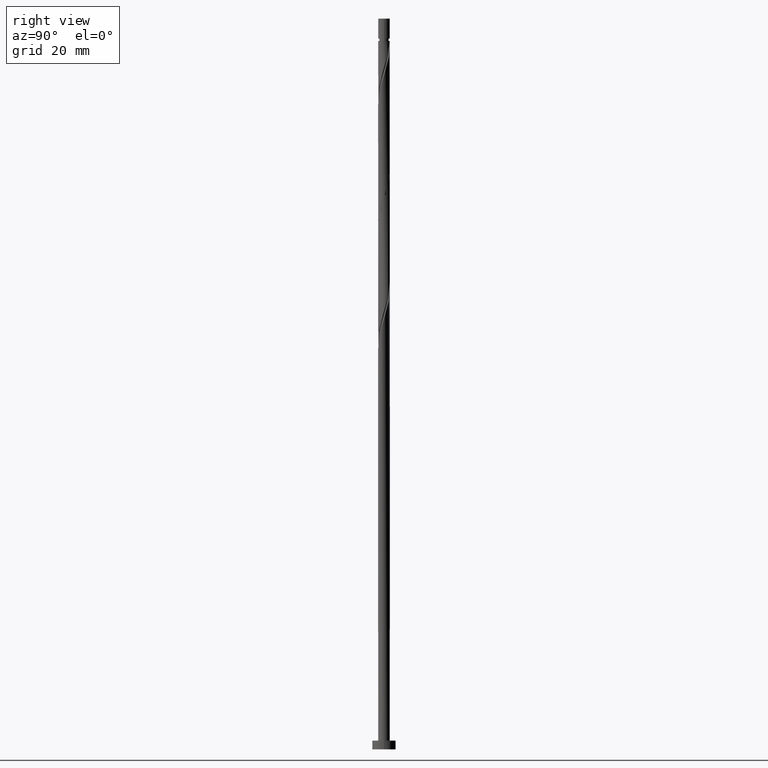
[diagram: clean part render]
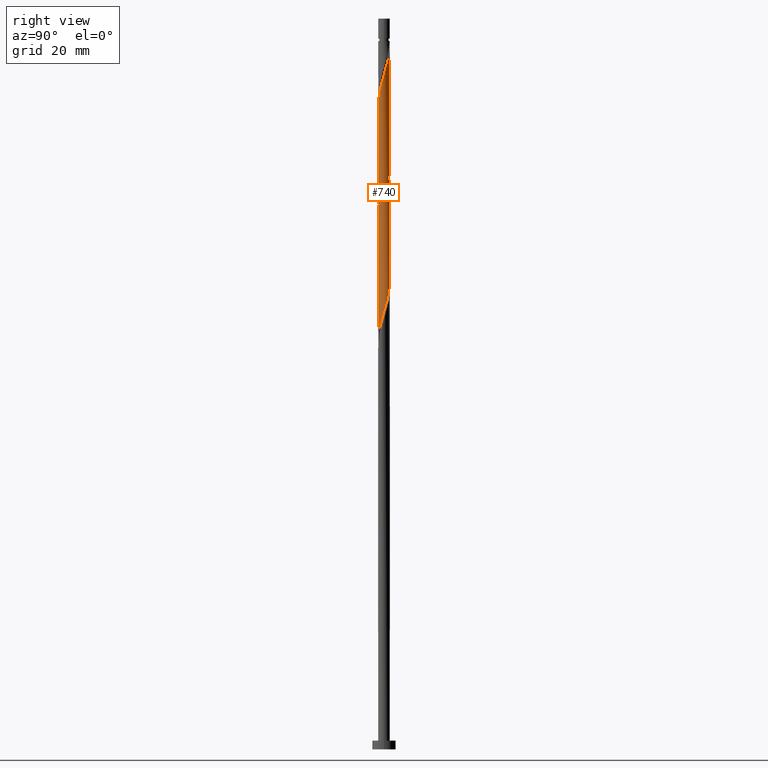
[diagram: same view with one face highlighted and labeled with its STEP entity id]
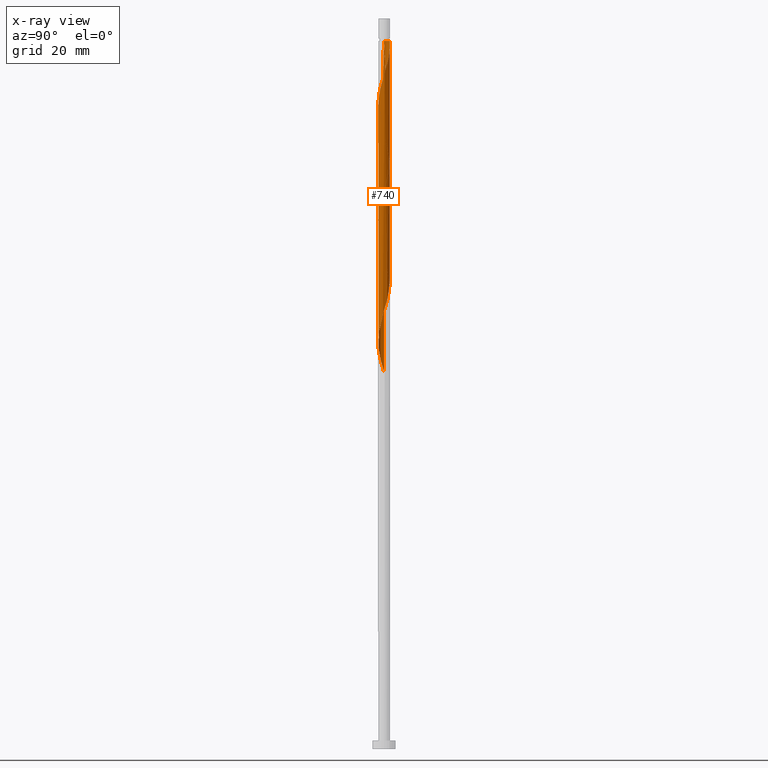
[diagram: x-ray of the same camera — body ghosted, the highlighted face saturated]
A machine part, right view. The second image highlights one B-rep face of the part: STEP entity #740.
The next image is the same camera in x-ray: the body ghosted, the highlighted face saturated — about 0% of this face is hidden behind the body in this view.
In plain terms, the highlighted cylindrical surface (bore or boss wall) has radius 2 mm, axis along (-0, -0, -1).
Its self-contained STEP definition (entity closure, byte-faithful):
#33 = AXIS2_PLACEMENT_3D ( 'NONE', #992, #1089, #1616 ) ;
#34 = CARTESIAN_POINT ( 'NONE',  ( 1.839135291735831457, -0.7858634605908146886, 227.9393398159223523 ) ) ;
#41 = CARTESIAN_POINT ( 'NONE',  ( -2.000000000000003109, -5.234578486650210785E-17, 209.7844948631074260 ) ) ;
#47 =( BOUNDED_CURVE ( )  B_SPLINE_CURVE ( 2, ( #1592, #940, #1462, #273, #1515, #444, #594, #427, #1108, #712, #1623, #1261, #316, #177, #983, #420, #435, #1606, #48, #847, #828, #1356, #837, #555, #956, #1494, #169, #972, #693 ),
 .UNSPECIFIED., .F., .F. ) 
 B_SPLINE_CURVE_WITH_KNOTS ( ( 3, 2, 2, 2, 2, 2, 2, 2, 2, 2, 2, 2, 2, 2, 3 ),
 ( 0.4295271625973833274, 0.4326923076923077094, 0.4423076923076922906, 0.4519230769230769273, 0.4615384615384615641, 0.4711538461538461453, 0.4807692307692307820, 0.4903846153846153633, 0.5000000000000000000, 0.5096153846153845812, 0.5192307692307692735, 0.5288461538461538547, 0.5384615384615384359, 0.5480769230769231282, 0.5545271625973832164 ),
 .UNSPECIFIED. ) 
 CURVE ( )  GEOMETRIC_REPRESENTATION_ITEM ( )  RATIONAL_B_SPLINE_CURVE ( ( 0.9061636035682995027, 0.9069090390690881520, 0.9090909090909448098, 0.9024626128164481287, 0.9090909090909448098, 0.9024626128164481287, 0.9090909090909448098, 0.9024626128164481287, 0.9090909090909448098, 0.9024626128164481287, 0.9090909090909448098, 0.9024626128164481287, 0.9090909090909448098, 0.9024626128164481287, 0.9090909090909448098, 0.9024626128164481287, 0.9090909090909448098, 0.9024626128164481287, 0.9090909090909448098, 0.9024626128164481287, 0.9090909090909448098, 0.9024626128164481287, 0.9090909090909448098, 0.9024626128164481287, 0.9090909090909448098, 0.9024626128164481287, 0.9090909090909448098, 0.9046444828383048975, 0.9061636035682996138 ) ) 
 REPRESENTATION_ITEM ( '' )  );
#48 = CARTESIAN_POINT ( 'NONE',  ( 0.8554886662037728406, 1.807799530367482532, 199.0931859697684843 ) ) ;
#50 = CARTESIAN_POINT ( 'NONE',  ( -2.000000000000003109, -5.234578486650210785E-17, 209.7844948631074260 ) ) ;
#57 = AXIS2_PLACEMENT_3D ( 'NONE', #1404, #361, #1694 ) ;
#61 = CARTESIAN_POINT ( 'NONE',  ( -1.974395566656741430, -0.4009181193270349164, 211.1124167389993431 ) ) ;
#63 = CARTESIAN_POINT ( 'NONE',  ( 1.897736400206351481, -0.6313450366731644392, 189.4778013543838426 ) ) ;
#79 = CARTESIAN_POINT ( 'NONE',  ( -1.691500872565838032, 1.067157344588420598, 167.0419039184864118 ) ) ;
#87 = CARTESIAN_POINT ( 'NONE',  ( -1.974395566656737877, 0.4009181193270346388, 169.4457500723326007 ) ) ;
#95 = CARTESIAN_POINT ( 'NONE',  ( -0.3252653633339290806, 1.988259448727392131, 161.4329295595120755 ) ) ;
#104 = VERTEX_POINT ( 'NONE', #1189 ) ;
#106 = CARTESIAN_POINT ( 'NONE',  ( 1.211998413758895943, -1.609357958033087455, 143.8047244313069370 ) ) ;
#161 = CARTESIAN_POINT ( 'NONE',  ( 1.451533661270556053, -1.397148246335018440, 225.5354936620762771 ) ) ;
#167 = ORIENTED_EDGE ( 'NONE', *, *, #580, .F. ) ;
#169 = CARTESIAN_POINT ( 'NONE',  ( 1.973762798760987147, 0.3228938126183191204, 192.6829295595121039 ) ) ;
#171 = DIRECTION ( 'NONE',  ( -0.000000000000000000, -0.000000000000000000, -1.000000000000000000 ) ) ;
#177 = CARTESIAN_POINT ( 'NONE',  ( -0.3252653633339290806, 1.988259448727392131, 203.0995962261787326 ) ) ;
#179 = CARTESIAN_POINT ( 'NONE',  ( -1.897736400206355256, -0.6313450366731635510, 211.9136987902813019 ) ) ;
#197 = CARTESIAN_POINT ( 'NONE',  ( 2.000000000000000444, 2.123743271726671248E-15, 191.6070052815578322 ) ) ;
#207 = CARTESIAN_POINT ( 'NONE',  ( 0.3252653633339306904, 1.988259448727395462, 239.9585705851532396 ) ) ;
#208 = CARTESIAN_POINT ( 'NONE',  ( -1.897736400206351481, 0.6313450366731636620, 168.6444680210505567 ) ) ;
#215 = CARTESIAN_POINT ( 'NONE',  ( 1.839135291735829236, 0.7858634605908124682, 152.6188269954094778 ) ) ;
#223 = CARTESIAN_POINT ( 'NONE',  ( 0.5584503685516667426, 1.920451297446649663, 239.1572885338710535 ) ) ;
#224 = CARTESIAN_POINT ( 'NONE',  ( -0.3979949748426498957, -1.959999999999999520, 138.1957500723326575 ) ) ;
#234 = CARTESIAN_POINT ( 'NONE',  ( 0.5584503685516641891, -1.920451297446647221, 141.4008782774608335 ) ) ;
#273 = CARTESIAN_POINT ( 'NONE',  ( -1.974395566656737877, 0.4009181193270346388, 211.1124167389993431 ) ) ;
#298 = CARTESIAN_POINT ( 'NONE',  ( -2.000000000000000000, 0.000000000000000000, 250.0000000000000000 ) ) ;
#300 = CARTESIAN_POINT ( 'NONE',  ( -1.451533661270553610, -1.397148246335015775, 175.8560064825890095 ) ) ;
#315 = VECTOR ( 'NONE', #821, 1000.000000000000000 ) ;
#316 = CARTESIAN_POINT ( 'NONE',  ( -0.5584503685516643001, 1.920451297446647221, 203.9008782774608051 ) ) ;
#318 = CARTESIAN_POINT ( 'NONE',  ( -2.000000000000002220, -0.07954626067354338137, 210.0486657787403715 ) ) ;
#320 = CARTESIAN_POINT ( 'NONE',  ( 1.993682386258019967, -0.1588412500722983789, 191.0803654569480159 ) ) ;
#327 = CARTESIAN_POINT ( 'NONE',  ( 1.386961462567306569, 1.440950346595318843, 235.9521603287428491 ) ) ;
#329 = CARTESIAN_POINT ( 'NONE',  ( 1.001816893764147842, -1.731000552099494438, 184.6701090466916355 ) ) ;
#343 = CARTESIAN_POINT ( 'NONE',  ( -1.211998413758896609, 1.609357958033087010, 164.6380577646403083 ) ) ;
#351 = CARTESIAN_POINT ( 'NONE',  ( 1.691500872565838032, -1.067157344588420820, 146.2085705851531259 ) ) ;
#361 = DIRECTION ( 'NONE',  ( -0.000000000000000000, -0.000000000000000000, -1.000000000000000000 ) ) ;
#362 = CARTESIAN_POINT ( 'NONE',  ( 1.386961462567303904, -1.440950346595317955, 144.6060064825890095 ) ) ;
#369 = ORIENTED_EDGE ( 'NONE', *, *, #405, .T. ) ;
#371 = CARTESIAN_POINT ( 'NONE',  ( -1.934556391662673569, -0.5625520060541976397, 130.9842116107941195 ) ) ;
#405 = EDGE_CURVE ( 'NONE', #1418, #502, #958, .T. ) ;
#413 = EDGE_CURVE ( 'NONE', #511, #104, #1377, .T. ) ;
#420 = CARTESIAN_POINT ( 'NONE',  ( 0.1600078877270190436, 2.008325339157888134, 201.4970321236147015 ) ) ;
#427 = CARTESIAN_POINT ( 'NONE',  ( -1.561924511375710978, 1.272542735157548233, 207.9072885338711103 ) ) ;
#429 = CARTESIAN_POINT ( 'NONE',  ( 0.8554886662037717304, -1.807799530367486529, 223.1316475082300599 ) ) ;
#431 = CARTESIAN_POINT ( 'NONE',  ( -1.263264465859908148, -1.550536323113935078, 176.6572885338710819 ) ) ;
#435 = CARTESIAN_POINT ( 'NONE',  ( 0.3979949748426501732, 1.959999999999999520, 200.6957500723326291 ) ) ;
#437 = CARTESIAN_POINT ( 'NONE',  ( 1.597623926539770256, -1.203161580731224145, 226.3367757133582643 ) ) ;
#444 = CARTESIAN_POINT ( 'NONE',  ( -1.821077233755965530, 0.8617719540192920746, 209.5098526364352267 ) ) ;
#448 = CARTESIAN_POINT ( 'NONE',  ( 2.000000000000000444, 2.123743271726671248E-15, 191.6070052815578322 ) ) ;
#455 = VERTEX_POINT ( 'NONE', #966 ) ;
#458 = CARTESIAN_POINT ( 'NONE',  ( 1.561924511375714308, 1.272542735157548677, 235.1508782774608335 ) ) ;
#465 = CARTESIAN_POINT ( 'NONE',  ( 0.8554886662037728406, 1.807799530367482532, 157.4265193031018271 ) ) ;
#472 = CARTESIAN_POINT ( 'NONE',  ( -2.000000000000000000, 2.669635028191625354E-15, 129.1070052815578322 ) ) ;
#480 = CARTESIAN_POINT ( 'NONE',  ( 0.1600078877270190436, 2.008325339157888134, 159.8303654569480159 ) ) ;
#485 = ORIENTED_EDGE ( 'NONE', *, *, #1308, .T. ) ;
#489 = CARTESIAN_POINT ( 'NONE',  ( 0.3979949748426501732, 1.959999999999999520, 159.0290834056659719 ) ) ;
#498 = CARTESIAN_POINT ( 'NONE',  ( -1.934556391662673569, -0.5625520060541976397, 172.6508782774607482 ) ) ;
#502 = VERTEX_POINT ( 'NONE', #197 ) ;
#511 = VERTEX_POINT ( 'NONE', #50 ) ;
#530 = CIRCLE ( 'NONE', #33, 1.999999999999982681 ) ;
#555 = CARTESIAN_POINT ( 'NONE',  ( 1.743714191808984681, 1.009174915127426297, 195.0867757133582643 ) ) ;
#556 = EDGE_CURVE ( 'NONE', #1693, #1173, #1250, .T. ) ;
#558 = CARTESIAN_POINT ( 'NONE',  ( -2.000000000000000000, 0.000000000000000000, 250.0000000000000000 ) ) ;
#560 = CARTESIAN_POINT ( 'NONE',  ( 1.691500872565838032, -1.067157344588420820, 187.8752372518197546 ) ) ;
#567 = CARTESIAN_POINT ( 'NONE',  ( -0.5584503685516657434, -1.920451297446650329, 218.3239552005377675 ) ) ;
#575 = CARTESIAN_POINT ( 'NONE',  ( 1.993682386258022632, 0.1588412500722958531, 231.1444680210505283 ) ) ;
#580 = EDGE_CURVE ( 'NONE', #511, #455, #1213, .T. ) ;
#586 = CARTESIAN_POINT ( 'NONE',  ( -1.211998413758899718, -1.609357958033089009, 215.9201090466916071 ) ) ;
#588 = CARTESIAN_POINT ( 'NONE',  ( 1.821077233755965530, -0.8617719540192920746, 188.6765193031018271 ) ) ;
#594 = CARTESIAN_POINT ( 'NONE',  ( -1.691500872565838032, 1.067157344588420598, 208.7085705851530690 ) ) ;
#596 = CARTESIAN_POINT ( 'NONE',  ( 1.597623926539769146, 1.203161580731220814, 154.2213910979736511 ) ) ;
#602 = CARTESIAN_POINT ( 'NONE',  ( 0.7916353737694016290, 1.852643146165904975, 238.3560064825890947 ) ) ;
#603 = CARTESIAN_POINT ( 'NONE',  ( 0.3252653633339281924, -1.988259448727392131, 140.5995962261787326 ) ) ;
#612 = CARTESIAN_POINT ( 'NONE',  ( 1.074995270449263129, 1.703924399892854602, 156.6252372518197546 ) ) ;
#621 = CARTESIAN_POINT ( 'NONE',  ( -1.001816893764148064, 1.731000552099494438, 163.8367757133582359 ) ) ;
#628 = ORIENTED_EDGE ( 'NONE', *, *, #413, .T. ) ;
#630 = CARTESIAN_POINT ( 'NONE',  ( 0.6359820619582814416, 1.911674660842111129, 158.2278013543838995 ) ) ;
#687 = CARTESIAN_POINT ( 'NONE',  ( 0.6359820619582808865, -1.911674660842115347, 222.3303654569481012 ) ) ;
#693 = CARTESIAN_POINT ( 'NONE',  ( 2.000000000000000444, 2.123743271726671248E-15, 191.6070052815578322 ) ) ;
#695 = CARTESIAN_POINT ( 'NONE',  ( -0.3252653633339305239, -1.988259448727395462, 219.1252372518198683 ) ) ;
#697 = CARTESIAN_POINT ( 'NONE',  ( -1.999999999999982681, 0.000000000000000000, 242.3624167389992863 ) ) ;
#704 = CARTESIAN_POINT ( 'NONE',  ( -1.001816893764150285, -1.731000552099496215, 216.7213910979736227 ) ) ;
#712 = CARTESIAN_POINT ( 'NONE',  ( -1.211998413758896609, 1.609357958033087010, 206.3047244313069939 ) ) ;
#714 = CARTESIAN_POINT ( 'NONE',  ( -1.993682386258022188, -0.1588412500722965470, 210.3111346877172139 ) ) ;
#724 = CARTESIAN_POINT ( 'NONE',  ( 2.000000000000000000, 2.449293598294706414E-16, 242.3624167389992863 ) ) ;
#726 = CARTESIAN_POINT ( 'NONE',  ( -1.386961462567306347, -1.440950346595318843, 215.1188269954094778 ) ) ;
#727 = CARTESIAN_POINT ( 'NONE',  ( 0.3252653633339281924, -1.988259448727392131, 182.2662628928454183 ) ) ;
#735 = CARTESIAN_POINT ( 'NONE',  ( 1.001816893764147842, -1.731000552099494438, 143.0034423800249215 ) ) ;
#740 = ADVANCED_FACE ( 'NONE', ( #1165 ), #868, .T. ) ;
#744 = CARTESIAN_POINT ( 'NONE',  ( -2.012969205859300725, -0.08323561918244055946, 171.0483141748966602 ) ) ;
#752 = CARTESIAN_POINT ( 'NONE',  ( -0.1600078877270122435, 2.008325339157890799, 241.5611346877172423 ) ) ;
#753 = CARTESIAN_POINT ( 'NONE',  ( -0.6359820619582813306, -1.911674660842111351, 137.3944680210505283 ) ) ;
#758 = ORIENTED_EDGE ( 'NONE', *, *, #1127, .F. ) ;
#761 = ORIENTED_EDGE ( 'NONE', *, *, #405, .F. ) ;
#764 = CARTESIAN_POINT ( 'NONE',  ( 1.974395566656737877, -0.4009181193270348609, 148.6124167389992294 ) ) ;
#821 = DIRECTION ( 'NONE',  ( -0.000000000000000000, -0.000000000000000000, -1.000000000000000000 ) ) ;
#828 = CARTESIAN_POINT ( 'NONE',  ( 1.263264465859909036, 1.550536323113934412, 197.4906218672044247 ) ) ;
#837 = CARTESIAN_POINT ( 'NONE',  ( 1.597623926539769146, 1.203161580731220814, 195.8880577646403083 ) ) ;
#839 = CARTESIAN_POINT ( 'NONE',  ( 1.973762798760990034, -0.3228938126183206192, 229.5419039184864118 ) ) ;
#845 = VECTOR ( 'NONE', #1487, 1000.000000000000000 ) ;
#847 = CARTESIAN_POINT ( 'NONE',  ( 1.074995270449263129, 1.703924399892854602, 198.2919039184864687 ) ) ;
#849 = CARTESIAN_POINT ( 'NONE',  ( 1.821077233755969083, 0.8617719540192924077, 233.5483141748967455 ) ) ;
#852 = CARTESIAN_POINT ( 'NONE',  ( 1.974395566656737877, -0.4009181193270348609, 190.2790834056659719 ) ) ;
#859 = CARTESIAN_POINT ( 'NONE',  ( 1.211998413758900384, 1.609357958033088343, 236.7534423800249783 ) ) ;
#861 = CARTESIAN_POINT ( 'NONE',  ( 0.7916353737693991865, -1.852643146165902310, 183.8688269954094778 ) ) ;
#868 = CYLINDRICAL_SURFACE ( 'NONE', #57, 2.000000000000000000 ) ;
#869 = CARTESIAN_POINT ( 'NONE',  ( -1.839135291735829014, -0.7858634605908129123, 131.7854936620761919 ) ) ;
#879 = CARTESIAN_POINT ( 'NONE',  ( -1.597623926539769146, -1.203161580731221481, 175.0547244313069655 ) ) ;
#887 = CARTESIAN_POINT ( 'NONE',  ( -1.386961462567303904, 1.440950346595317955, 165.4393398159223239 ) ) ;
#898 = CARTESIAN_POINT ( 'NONE',  ( -1.074995270449262907, -1.703924399892854602, 135.7919039184864118 ) ) ;
#907 = CARTESIAN_POINT ( 'NONE',  ( -1.973762798760987147, -0.3228938126183189539, 130.1829295595121039 ) ) ;
#940 = CARTESIAN_POINT ( 'NONE',  ( -2.000000000000000000, 0.07954626067353899599, 212.1761676992581727 ) ) ;
#956 = CARTESIAN_POINT ( 'NONE',  ( 1.839135291735829236, 0.7858634605908124682, 194.2854936620761919 ) ) ;
#958 = LINE ( 'NONE', #1625, #1069 ) ;
#959 = CARTESIAN_POINT ( 'NONE',  ( 1.561924511375709645, -1.272542735157549343, 187.0739552005377107 ) ) ;
#966 = CARTESIAN_POINT ( 'NONE',  ( -0.3979949748426966361, 1.960000000000610587, 242.3624167389992010 ) ) ;
#972 = CARTESIAN_POINT ( 'NONE',  ( 1.999999999999999556, 0.1625128770740915940, 192.1467060189061726 ) ) ;
#983 = CARTESIAN_POINT ( 'NONE',  ( -0.08262873780345499075, 1.998292393942640688, 202.2983141748966887 ) ) ;
#985 = CARTESIAN_POINT ( 'NONE',  ( -1.561924511375713642, -1.272542735157549787, 214.3175449441275191 ) ) ;
#987 = CARTESIAN_POINT ( 'NONE',  ( 2.000000000000000444, -0.07954626067353669228, 191.3428343659248583 ) ) ;
#992 = CARTESIAN_POINT ( 'NONE',  ( 0.000000000000000000, 0.000000000000000000, 242.3624167389992863 ) ) ;
#994 = CARTESIAN_POINT ( 'NONE',  ( 0.1600078877270181554, -2.008325339157891243, 220.7278013543839563 ) ) ;
#1001 = CARTESIAN_POINT ( 'NONE',  ( 1.897736400206351481, -0.6313450366731644392, 147.8111346877171854 ) ) ;
#1014 = CARTESIAN_POINT ( 'NONE',  ( 1.001816893764150951, 1.731000552099496215, 237.5547244313069370 ) ) ;
#1015 = CARTESIAN_POINT ( 'NONE',  ( -0.1600078877270194322, -2.008325339157888134, 138.9970321236146447 ) ) ;
#1025 = CARTESIAN_POINT ( 'NONE',  ( -1.993682386258019523, 0.1588412500722972409, 170.2470321236146447 ) ) ;
#1036 = CARTESIAN_POINT ( 'NONE',  ( 1.973762798760987147, 0.3228938126183191204, 151.0162628928454183 ) ) ;
#1050 =( BOUNDED_CURVE ( )  B_SPLINE_CURVE ( 2, ( #448, #987, #320, #852, #63, #588, #560, #959, #1122, #1648, #329, #861, #1388, #727, #1093, #1085, #1489, #1611, #1480, #1619, #431, #300, #879, #1684, #1676, #498, #1277, #744, #1025, #87, #208, #1656, #79, #1550, #887, #343, #621, #1405, #1531, #95, #1284, #480, #489, #630, #465, #612, #1294, #1397, #596, #1148, #215, #1139, #1036, #1156, #1561, #764, #1001, #1524, #351, #1413, #362, #106, #735, #1270, #234, #603, #1540, #1015, #224, #753, #1166, #898, #1423, #1665, #1695, #1131, #869, #371, #907, #1303, #472 ),
 .UNSPECIFIED., .F., .F. ) 
 B_SPLINE_CURVE_WITH_KNOTS ( ( 3, 2, 2, 2, 2, 2, 2, 2, 2, 2, 2, 2, 2, 2, 2, 2, 2, 2, 2, 2, 2, 2, 2, 2, 2, 2, 2, 2, 2, 2, 2, 2, 2, 2, 2, 2, 2, 2, 2, 2, 3 ),
 ( 0.5545271625973832164, 0.5576923076923077094, 0.5673076923076922906, 0.5769230769230768718, 0.5865384615384615641, 0.5961538461538461453, 0.6057692307692307265, 0.6153846153846154188, 0.6250000000000000000, 0.6346153846153845812, 0.6442307692307692735, 0.6538461538461538547, 0.6634615384615384359, 0.6730769230769231282, 0.6826923076923077094, 0.6923076923076922906, 0.7019230769230768718, 0.7115384615384615641, 0.7211538461538461453, 0.7307692307692307265, 0.7403846153846154188, 0.7500000000000000000, 0.7596153846153845812, 0.7692307692307692735, 0.7788461538461538547, 0.7884615384615384359, 0.7980769230769231282, 0.8076923076923077094, 0.8173076923076922906, 0.8269230769230768718, 0.8365384615384615641, 0.8461538461538461453, 0.8557692307692307265, 0.8653846153846154188, 0.8750000000000000000, 0.8846153846153845812, 0.8942307692307692735, 0.9038461538461538547, 0.9134615384615384359, 0.9230769230769231282, 0.9295271625973834384 ),
 .UNSPECIFIED. ) 
 CURVE ( )  GEOMETRIC_REPRESENTATION_ITEM ( )  RATIONAL_B_SPLINE_CURVE ( ( 0.9061636035682996138, 0.9069090390690881520, 0.9090909090909448098, 0.9024626128164481287, 0.9090909090909448098, 0.9024626128164481287, 0.9090909090909448098, 0.9024626128164481287, 0.9090909090909448098, 0.9024626128164481287, 0.9090909090909448098, 0.9024626128164481287, 0.9090909090909448098, 0.9024626128164481287, 0.9090909090909448098, 0.9024626128164481287, 0.9090909090909448098, 0.9024626128164481287, 0.9090909090909448098, 0.9024626128164481287, 0.9090909090909448098, 0.9024626128164481287, 0.9090909090909448098, 0.9024626128164481287, 0.9090909090909448098, 0.9024626128164481287, 0.9090909090909448098, 0.9024626128164481287, 0.9090909090909448098, 0.9024626128164481287, 0.9090909090909448098, 0.9024626128164481287, 0.9090909090909448098, 0.9024626128164481287, 0.9090909090909448098, 0.9024626128164481287, 0.9090909090909448098, 0.9024626128164481287, 0.9090909090909448098, 0.9024626128164481287, 0.9090909090909448098, 0.9024626128164481287, 0.9090909090909448098, 0.9024626128164481287, 0.9090909090909448098, 0.9024626128164481287, 0.9090909090909448098, 0.9024626128164481287, 0.9090909090909448098, 0.9024626128164481287, 0.9090909090909448098, 0.9024626128164481287, 0.9090909090909448098, 0.9024626128164481287, 0.9090909090909448098, 0.9024626128164481287, 0.9090909090909448098, 0.9024626128164481287, 0.9090909090909448098, 0.9024626128164481287, 0.9090909090909448098, 0.9024626128164481287, 0.9090909090909448098, 0.9024626128164481287, 0.9090909090909448098, 0.9024626128164481287, 0.9090909090909448098, 0.9024626128164481287, 0.9090909090909448098, 0.9024626128164481287, 0.9090909090909448098, 0.9024626128164481287, 0.9090909090909448098, 0.9024626128164481287, 0.9090909090909448098, 0.9024626128164481287, 0.9090909090909448098, 0.9024626128164481287, 0.9090909090909448098, 0.9046444828383046755, 0.9061636035682997248 ) ) 
 REPRESENTATION_ITEM ( '' )  );
#1069 = VECTOR ( 'NONE', #171, 1000.000000000000000 ) ;
#1085 = CARTESIAN_POINT ( 'NONE',  ( -0.1600078877270194322, -2.008325339157888134, 180.6636987902813303 ) ) ;
#1089 = DIRECTION ( 'NONE',  ( -0.000000000000000000, -0.000000000000000000, -1.000000000000000000 ) ) ;
#1091 = CARTESIAN_POINT ( 'NONE',  ( -0.08262873780345621200, -1.998292393942642908, 219.9265193031017986 ) ) ;
#1093 = CARTESIAN_POINT ( 'NONE',  ( 0.08262873780345436625, -1.998292393942640688, 181.4649808415633743 ) ) ;
#1100 = CARTESIAN_POINT ( 'NONE',  ( 0.3979949748426497291, -1.960000000000002629, 221.5290834056659151 ) ) ;
#1108 = CARTESIAN_POINT ( 'NONE',  ( -1.386961462567303904, 1.440950346595317955, 207.1060064825890663 ) ) ;
#1111 = CARTESIAN_POINT ( 'NONE',  ( 1.974395566656741430, 0.4009181193270345833, 231.9457500723326575 ) ) ;
#1121 = CARTESIAN_POINT ( 'NONE',  ( -0.7916353737694011850, -1.852643146165904975, 217.5226731492557519 ) ) ;
#1122 = CARTESIAN_POINT ( 'NONE',  ( 1.386961462567303904, -1.440950346595317955, 186.2726731492556667 ) ) ;
#1127 = EDGE_CURVE ( 'NONE', #1173, #502, #47, .T. ) ;
#1131 = CARTESIAN_POINT ( 'NONE',  ( -1.743714191808983793, -1.009174915127427186, 132.5867757133582643 ) ) ;
#1139 = CARTESIAN_POINT ( 'NONE',  ( 1.934556391662674013, 0.5625520060541965295, 151.8175449441274623 ) ) ;
#1147 = CARTESIAN_POINT ( 'NONE',  ( -0.3979949748426966361, 1.960000000000610587, 242.3624167389992010 ) ) ;
#1148 = CARTESIAN_POINT ( 'NONE',  ( 1.743714191808984681, 1.009174915127426297, 153.4201090466915787 ) ) ;
#1156 = CARTESIAN_POINT ( 'NONE',  ( 2.012969205859301169, 0.08323561918243986557, 150.2149808415633174 ) ) ;
#1165 = FACE_OUTER_BOUND ( 'NONE', #1411, .T. ) ;
#1166 = CARTESIAN_POINT ( 'NONE',  ( -0.8554886662037719525, -1.807799530367482976, 136.5931859697684558 ) ) ;
#1173 = VERTEX_POINT ( 'NONE', #1237 ) ;
#1189 = CARTESIAN_POINT ( 'NONE',  ( -2.000000000000000000, 2.669635028191625354E-15, 129.1070052815578322 ) ) ;
#1213 =( BOUNDED_CURVE ( )  B_SPLINE_CURVE ( 2, ( #41, #318, #714, #61, #179, #1358, #1349, #985, #726, #586, #704, #1121, #567, #695, #1091, #994, #1100, #687, #429, #1517, #1507, #161, #437, #1239, #34, #1496, #839, #1367, #575, #1111, #1635, #849, #1647, #458, #327, #859, #1014, #602, #223, #207, #1538, #752, #1147 ),
 .UNSPECIFIED., .F., .T. ) 
 B_SPLINE_CURVE_WITH_KNOTS ( ( 3, 2, 2, 2, 2, 2, 2, 2, 2, 2, 2, 2, 2, 2, 2, 2, 2, 2, 2, 2, 2, 3 ),
 ( 0.5545271625973835494, 0.5576923076923077094, 0.5673076923076922906, 0.5769230769230768718, 0.5865384615384615641, 0.5961538461538461453, 0.6057692307692307265, 0.6153846153846153078, 0.6249999999999998890, 0.6346153846153844702, 0.6442307692307690514, 0.6538461538461537437, 0.6634615384615383249, 0.6730769230769230171, 0.6826923076923075984, 0.6923076923076920686, 0.7019230769230766498, 0.7115384615384614531, 0.7211538461538460343, 0.7307692307692306155, 0.7403846153846151967, 0.7499999999999997780 ),
 .UNSPECIFIED. ) 
 CURVE ( )  GEOMETRIC_REPRESENTATION_ITEM ( )  RATIONAL_B_SPLINE_CURVE ( ( 0.9061636035683056090, 0.9069090390690943693, 0.9090909090909508050, 0.9024626128164540129, 0.9090909090909508050, 0.9024626128164540129, 0.9090909090909508050, 0.9024626128164540129, 0.9090909090909508050, 0.9024626128164540129, 0.9090909090909508050, 0.9024626128164540129, 0.9090909090909508050, 0.9024626128164540129, 0.9090909090909508050, 0.9024626128164540129, 0.9090909090909508050, 0.9024626128164540129, 0.9090909090909508050, 0.9024626128164540129, 0.9090909090909508050, 0.9024626128164540129, 0.9090909090909508050, 0.9024626128164540129, 0.9090909090909508050, 0.9024626128164540129, 0.9090909090909508050, 0.9024626128164540129, 0.9090909090909508050, 0.9024626128164540129, 0.9090909090909508050, 0.9024626128164540129, 0.9090909090909508050, 0.9024626128164540129, 0.9090909090909508050, 0.9024626128164540129, 0.9090909090909508050, 0.9024626128164540129, 0.9090909090909508050, 0.9024626128164540129, 0.9090909090909508050, 0.9024626128164541239, 0.9090909090909506940 ) ) 
 REPRESENTATION_ITEM ( '' )  );
#1237 = CARTESIAN_POINT ( 'NONE',  ( -2.000000000000000000, 8.150986500641094620E-16, 212.4403386148911181 ) ) ;
#1239 = CARTESIAN_POINT ( 'NONE',  ( 1.743714191808986458, -1.009174915127430738, 227.1380577646403935 ) ) ;
#1250 = LINE ( 'NONE', #298, #315 ) ;
#1261 = CARTESIAN_POINT ( 'NONE',  ( -0.7916353737693995196, 1.852643146165902310, 204.7021603287429343 ) ) ;
#1270 = CARTESIAN_POINT ( 'NONE',  ( 0.7916353737693991865, -1.852643146165902310, 142.2021603287428491 ) ) ;
#1277 = CARTESIAN_POINT ( 'NONE',  ( -1.973762798760987147, -0.3228938126183189539, 171.8495962261788179 ) ) ;
#1284 = CARTESIAN_POINT ( 'NONE',  ( -0.08262873780345499075, 1.998292393942640688, 160.6316475082300599 ) ) ;
#1292 = ORIENTED_EDGE ( 'NONE', *, *, #556, .F. ) ;
#1294 = CARTESIAN_POINT ( 'NONE',  ( 1.263264465859909036, 1.550536323113934412, 155.8239552005377107 ) ) ;
#1303 = CARTESIAN_POINT ( 'NONE',  ( -2.000000000000000888, -0.1625128770740864870, 129.6467060189061442 ) ) ;
#1308 = EDGE_CURVE ( 'NONE', #1693, #455, #530, .T. ) ;
#1349 = CARTESIAN_POINT ( 'NONE',  ( -1.691500872565841140, -1.067157344588421486, 213.5162628928454467 ) ) ;
#1356 = CARTESIAN_POINT ( 'NONE',  ( 1.451533661270554054, 1.397148246335015775, 196.6893398159224091 ) ) ;
#1358 = CARTESIAN_POINT ( 'NONE',  ( -1.821077233755968861, -0.8617719540192931849, 212.7149808415634311 ) ) ;
#1367 = CARTESIAN_POINT ( 'NONE',  ( 2.012969205859303834, -0.08323561918244104518, 230.3431859697685127 ) ) ;
#1377 = LINE ( 'NONE', #558, #845 ) ;
#1388 = CARTESIAN_POINT ( 'NONE',  ( 0.5584503685516641891, -1.920451297446647221, 183.0675449441274338 ) ) ;
#1397 = CARTESIAN_POINT ( 'NONE',  ( 1.451533661270554054, 1.397148246335015775, 155.0226731492556951 ) ) ;
#1404 = CARTESIAN_POINT ( 'NONE',  ( 0.000000000000000000, 0.000000000000000000, 250.0000000000000000 ) ) ;
#1405 = CARTESIAN_POINT ( 'NONE',  ( -0.7916353737693995196, 1.852643146165902310, 163.0354936620761634 ) ) ;
#1411 = EDGE_LOOP ( 'NONE', ( #1292, #485, #167, #628, #1682, #761, #369, #758 ) ) ;
#1413 = CARTESIAN_POINT ( 'NONE',  ( 1.561924511375709645, -1.272542735157549343, 145.4072885338709966 ) ) ;
#1418 = VERTEX_POINT ( 'NONE', #724 ) ;
#1423 = CARTESIAN_POINT ( 'NONE',  ( -1.263264465859908148, -1.550536323113935078, 134.9906218672043963 ) ) ;
#1462 = CARTESIAN_POINT ( 'NONE',  ( -1.993682386258019523, 0.1588412500722972409, 211.9136987902813019 ) ) ;
#1480 = CARTESIAN_POINT ( 'NONE',  ( -0.8554886662037719525, -1.807799530367482976, 178.2598526364351414 ) ) ;
#1487 = DIRECTION ( 'NONE',  ( -0.000000000000000000, -0.000000000000000000, -1.000000000000000000 ) ) ;
#1489 = CARTESIAN_POINT ( 'NONE',  ( -0.3979949748426498957, -1.959999999999999520, 179.8624167389992863 ) ) ;
#1494 = CARTESIAN_POINT ( 'NONE',  ( 1.934556391662674013, 0.5625520060541965295, 193.4842116107940910 ) ) ;
#1496 = CARTESIAN_POINT ( 'NONE',  ( 1.934556391662676900, -0.5625520060542003042, 228.7406218672044815 ) ) ;
#1507 = CARTESIAN_POINT ( 'NONE',  ( 1.263264465859909036, -1.550536323113937520, 224.7342116107941195 ) ) ;
#1515 = CARTESIAN_POINT ( 'NONE',  ( -1.897736400206351481, 0.6313450366731636620, 210.3111346877171854 ) ) ;
#1517 = CARTESIAN_POINT ( 'NONE',  ( 1.074995270449263352, -1.703924399892858377, 223.9329295595121323 ) ) ;
#1524 = CARTESIAN_POINT ( 'NONE',  ( 1.821077233755965530, -0.8617719540192920746, 147.0098526364351130 ) ) ;
#1531 = CARTESIAN_POINT ( 'NONE',  ( -0.5584503685516643001, 1.920451297446647221, 162.2342116107941763 ) ) ;
#1538 = CARTESIAN_POINT ( 'NONE',  ( 0.08262873780345734998, 1.998292393942642908, 240.7598526364351699 ) ) ;
#1540 = CARTESIAN_POINT ( 'NONE',  ( 0.08262873780345436625, -1.998292393942640688, 139.7983141748966602 ) ) ;
#1550 = CARTESIAN_POINT ( 'NONE',  ( -1.561924511375710978, 1.272542735157548233, 166.2406218672043394 ) ) ;
#1561 = CARTESIAN_POINT ( 'NONE',  ( 1.993682386258019967, -0.1588412500722983789, 149.4136987902813587 ) ) ;
#1592 = CARTESIAN_POINT ( 'NONE',  ( -2.000000000000000000, 8.150986500641094620E-16, 212.4403386148911181 ) ) ;
#1606 = CARTESIAN_POINT ( 'NONE',  ( 0.6359820619582814416, 1.911674660842111129, 199.8944680210505851 ) ) ;
#1611 = CARTESIAN_POINT ( 'NONE',  ( -0.6359820619582813306, -1.911674660842111351, 179.0611346877171854 ) ) ;
#1616 = DIRECTION ( 'NONE',  ( -1.000000000000000000, 0.000000000000000000, 0.000000000000000000 ) ) ;
#1619 = CARTESIAN_POINT ( 'NONE',  ( -1.074995270449262907, -1.703924399892854602, 177.4585705851530975 ) ) ;
#1623 = CARTESIAN_POINT ( 'NONE',  ( -1.001816893764148064, 1.731000552099494438, 205.5034423800248931 ) ) ;
#1625 = CARTESIAN_POINT ( 'NONE',  ( 2.000000000000000000, 2.449293598294706414E-16, 250.0000000000000000 ) ) ;
#1635 = CARTESIAN_POINT ( 'NONE',  ( 1.897736400206355922, 0.6313450366731626628, 232.7470321236146731 ) ) ;
#1647 = CARTESIAN_POINT ( 'NONE',  ( 1.691500872565840918, 1.067157344588421708, 234.3495962261787326 ) ) ;
#1648 = CARTESIAN_POINT ( 'NONE',  ( 1.211998413758895943, -1.609357958033087455, 185.4713910979736227 ) ) ;
#1656 = CARTESIAN_POINT ( 'NONE',  ( -1.821077233755965530, 0.8617719540192920746, 167.8431859697684274 ) ) ;
#1665 = CARTESIAN_POINT ( 'NONE',  ( -1.451533661270553610, -1.397148246335015775, 134.1893398159223523 ) ) ;
#1676 = CARTESIAN_POINT ( 'NONE',  ( -1.839135291735829014, -0.7858634605908129123, 173.4521603287428206 ) ) ;
#1682 = ORIENTED_EDGE ( 'NONE', *, *, #1703, .F. ) ;
#1684 = CARTESIAN_POINT ( 'NONE',  ( -1.743714191808983793, -1.009174915127427186, 174.2534423800249215 ) ) ;
#1693 = VERTEX_POINT ( 'NONE', #697 ) ;
#1694 = DIRECTION ( 'NONE',  ( -1.000000000000000000, 0.000000000000000000, 0.000000000000000000 ) ) ;
#1695 = CARTESIAN_POINT ( 'NONE',  ( -1.597623926539769146, -1.203161580731221481, 133.3880577646403083 ) ) ;
#1703 = EDGE_CURVE ( 'NONE', #502, #104, #1050, .T. ) ;